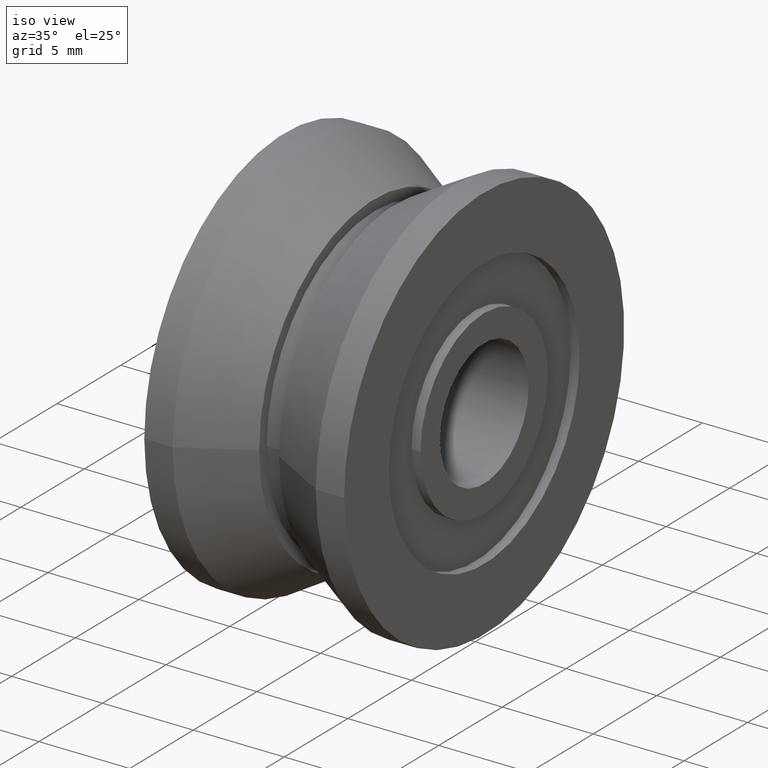
[diagram: clean part render]
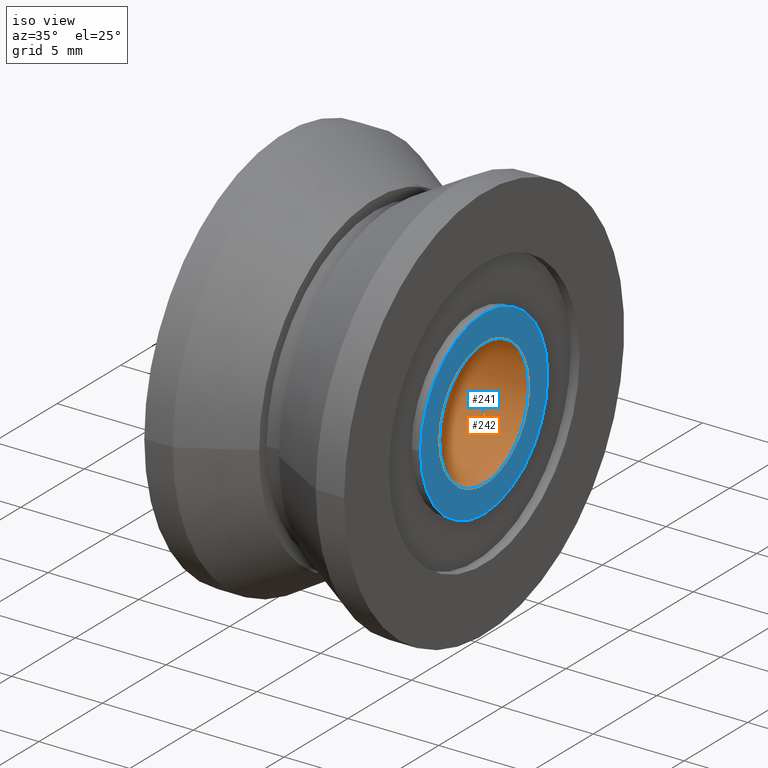
[diagram: same view with the hole feature highlighted: cylindrical wall and planar end face, labeled with their STEP entity ids]
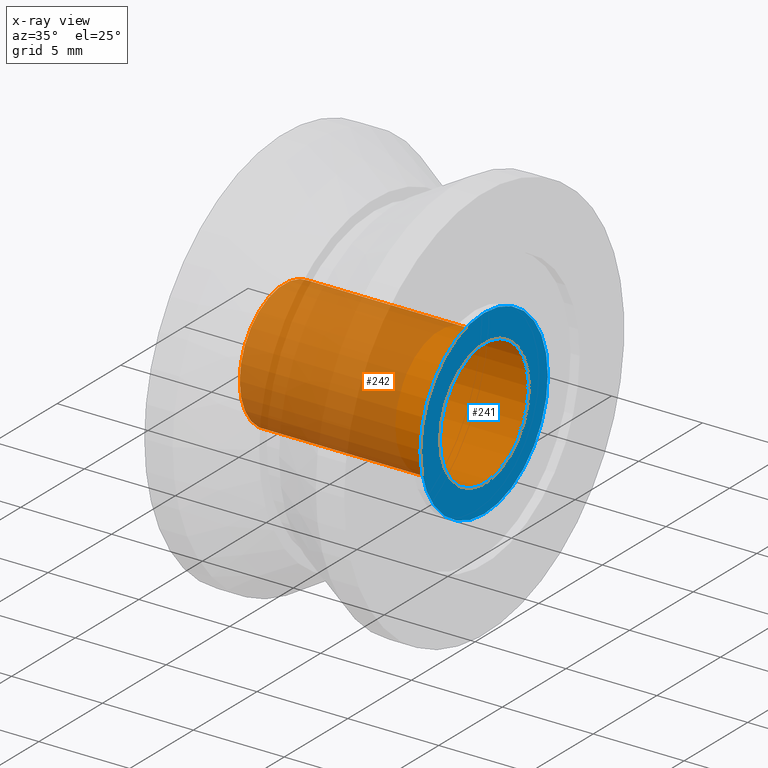
[diagram: x-ray of the same camera — body ghosted, the hole faces saturated]
A machine part, iso view. The highlighted faces form one hole feature of diameter 7 mm: the cylindrical wall (entity #242, orange) and its adjacent planar end face (entity #241, blue) — they share a circular edge in the B-rep.
The next image is the same camera in x-ray (body ghosted, the hole faces saturated) — the bore reads through the body.
Wall:
#26=LINE('',#450,#36);
#36=VECTOR('',#385,3.5);
#44=CYLINDRICAL_SURFACE('',#301,3.5);
#70=FACE_OUTER_BOUND('',#96,.T.);
#96=EDGE_LOOP('',(#213,#214,#215,#216));
#98=CIRCLE('',#268,3.5);
#114=CIRCLE('',#300,3.5);
#116=VERTEX_POINT('',#390);
#132=VERTEX_POINT('',#447);
#134=EDGE_CURVE('',#116,#116,#98,.T.);
#159=EDGE_CURVE('',#132,#132,#114,.T.);
#160=EDGE_CURVE('',#132,#116,#26,.T.);
#213=ORIENTED_EDGE('',*,*,#159,.T.);
#214=ORIENTED_EDGE('',*,*,#160,.T.);
#215=ORIENTED_EDGE('',*,*,#134,.F.);
#216=ORIENTED_EDGE('',*,*,#160,.F.);
#242=ADVANCED_FACE('',(#70),#44,.F.);
#268=AXIS2_PLACEMENT_3D('',#391,#308,#309);
#300=AXIS2_PLACEMENT_3D('',#448,#381,#382);
#301=AXIS2_PLACEMENT_3D('',#449,#383,#384);
#308=DIRECTION('center_axis',(1.,0.,0.));
#309=DIRECTION('ref_axis',(0.,1.,0.));
#381=DIRECTION('center_axis',(1.,0.,0.));
#382=DIRECTION('ref_axis',(0.,1.,0.));
#383=DIRECTION('center_axis',(1.,0.,0.));
#384=DIRECTION('ref_axis',(0.,1.,0.));
#385=DIRECTION('',(-1.,0.,0.));
#390=CARTESIAN_POINT('',(-5.5,-3.5,-4.28626379701574E-16));
#391=CARTESIAN_POINT('Origin',(-5.5,0.,0.));
#447=CARTESIAN_POINT('',(5.5,-3.5,-4.28626379701574E-16));
#448=CARTESIAN_POINT('Origin',(5.5,0.,0.));
#449=CARTESIAN_POINT('Origin',(-4.44089209850063E-15,0.,0.));
#450=CARTESIAN_POINT('',(-4.44089209850063E-15,-3.5,-4.28626379701574E-16));
End face:
#52=FACE_BOUND('',#95,.T.);
#69=FACE_OUTER_BOUND('',#94,.T.);
#94=EDGE_LOOP('',(#211));
#95=EDGE_LOOP('',(#212));
#113=CIRCLE('',#298,5.);
#114=CIRCLE('',#300,3.5);
#131=VERTEX_POINT('',#443);
#132=VERTEX_POINT('',#447);
#157=EDGE_CURVE('',#131,#131,#113,.T.);
#159=EDGE_CURVE('',#132,#132,#114,.T.);
#211=ORIENTED_EDGE('',*,*,#157,.T.);
#212=ORIENTED_EDGE('',*,*,#159,.F.);
#224=PLANE('',#299);
#241=ADVANCED_FACE('',(#69,#52),#224,.T.);
#298=AXIS2_PLACEMENT_3D('',#444,#376,#377);
#299=AXIS2_PLACEMENT_3D('',#446,#379,#380);
#300=AXIS2_PLACEMENT_3D('',#448,#381,#382);
#376=DIRECTION('center_axis',(1.,0.,0.));
#377=DIRECTION('ref_axis',(0.,1.,0.));
#379=DIRECTION('center_axis',(1.,0.,0.));
#380=DIRECTION('ref_axis',(0.,0.,-1.));
#381=DIRECTION('center_axis',(1.,0.,0.));
#382=DIRECTION('ref_axis',(0.,1.,0.));
#443=CARTESIAN_POINT('',(5.5,-5.,-6.12323399573677E-16));
#444=CARTESIAN_POINT('Origin',(5.5,0.,0.));
#446=CARTESIAN_POINT('Origin',(5.5,4.25,0.));
#447=CARTESIAN_POINT('',(5.5,-3.5,-4.28626379701574E-16));
#448=CARTESIAN_POINT('Origin',(5.5,0.,0.));